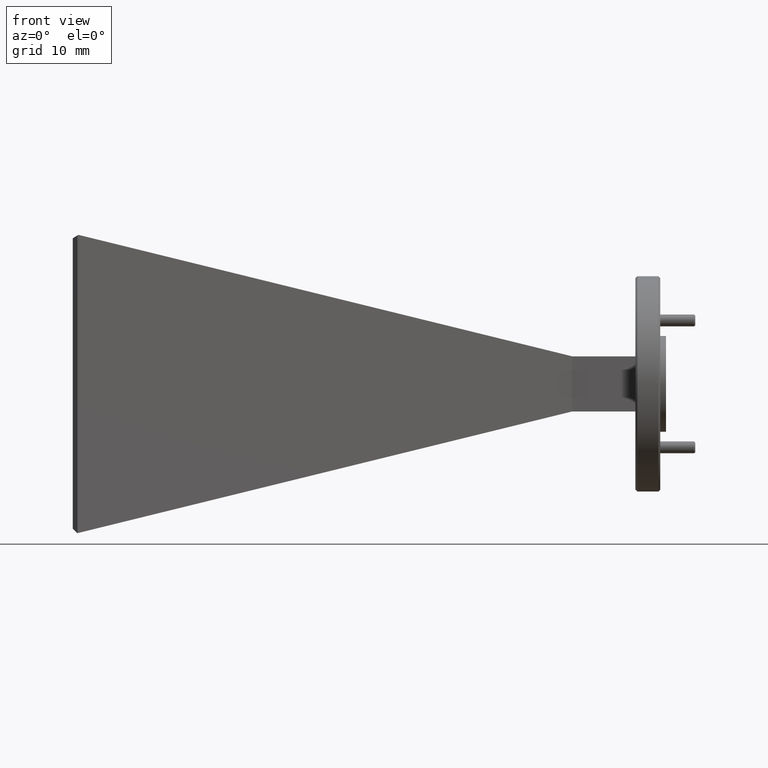
[diagram: clean part render]
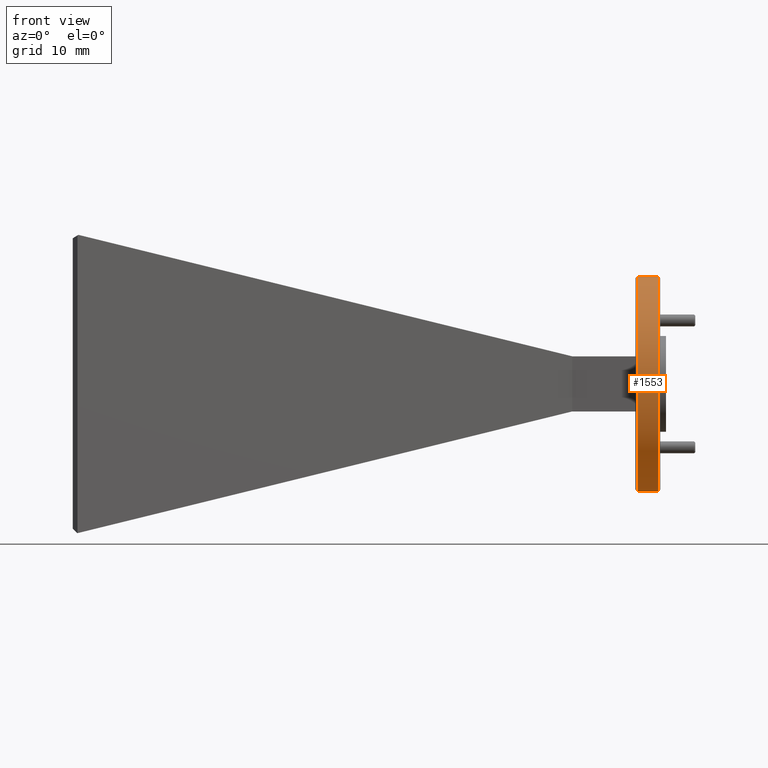
[diagram: same view with one face highlighted and labeled with its STEP entity id]
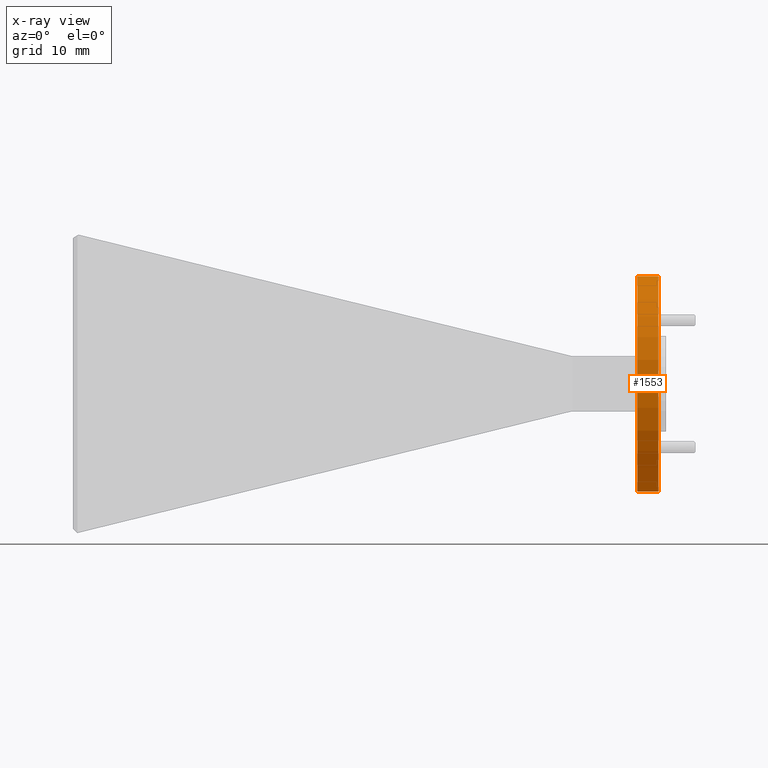
[diagram: x-ray of the same camera — body ghosted, the highlighted face saturated]
A machine part, front view. The second image highlights one B-rep face of the part: STEP entity #1553.
The next image is the same camera in x-ray: the body ghosted, the highlighted face saturated — about 0% of this face is hidden behind the body in this view.
In plain terms, the highlighted cylindrical surface (partial cylindrical patch) has radius 14.2875 mm, axis along (-1, -0, -0).
Its self-contained STEP definition (entity closure, byte-faithful):
#42 = EDGE_CURVE ( 'NONE', #55, #2305, #581, .T. ) ;
#49 = ORIENTED_EDGE ( 'NONE', *, *, #846, .T. ) ;
#55 = VERTEX_POINT ( 'NONE', #831 ) ;
#91 = AXIS2_PLACEMENT_3D ( 'NONE', #1757, #2317, #1202 ) ;
#120 = CARTESIAN_POINT ( 'NONE',  ( 2.503564782623160800, 1.586671098379451600, 1.930666721494955300 ) ) ;
#253 = CARTESIAN_POINT ( 'NONE',  ( 2.503564782623160800, 1.586671098379451600, 2.493166721494955300 ) ) ;
#316 = VERTEX_POINT ( 'NONE', #1573 ) ;
#372 = ORIENTED_EDGE ( 'NONE', *, *, #1535, .F. ) ;
#439 = CIRCLE ( 'NONE', #1661, 0.5625000000000003300 ) ;
#477 = CARTESIAN_POINT ( 'NONE',  ( 2.503564782623160800, 1.586671098379451600, 3.055666721494955300 ) ) ;
#581 = LINE ( 'NONE', #477, #2062 ) ;
#624 = DIRECTION ( 'NONE',  ( 0.0000000000000000000, 0.0000000000000000000, 1.000000000000000000 ) ) ;
#635 = LINE ( 'NONE', #120, #1036 ) ;
#756 = CIRCLE ( 'NONE', #91, 0.5624999999999997800 ) ;
#831 = CARTESIAN_POINT ( 'NONE',  ( 2.493564782623162400, 1.586671098379451600, 3.055666721494955300 ) ) ;
#846 = EDGE_CURVE ( 'NONE', #1198, #55, #756, .T. ) ;
#910 = EDGE_CURVE ( 'NONE', #1198, #316, #635, .T. ) ;
#1036 = VECTOR ( 'NONE', #1190, 39.37007874015748100 ) ;
#1069 = FACE_OUTER_BOUND ( 'NONE', #1943, .T. ) ;
#1151 = CARTESIAN_POINT ( 'NONE',  ( 2.383564782623162500, 1.586671098379451600, 3.055666721494955800 ) ) ;
#1190 = DIRECTION ( 'NONE',  ( -1.000000000000000000, -0.0000000000000000000, -0.0000000000000000000 ) ) ;
#1198 = VERTEX_POINT ( 'NONE', #1637 ) ;
#1202 = DIRECTION ( 'NONE',  ( 0.0000000000000000000, 0.0000000000000000000, 1.000000000000000000 ) ) ;
#1335 = CARTESIAN_POINT ( 'NONE',  ( 2.383564782623162500, 1.586671098379451600, 2.493166721494955300 ) ) ;
#1346 = DIRECTION ( 'NONE',  ( -1.000000000000000000, -0.0000000000000000000, -0.0000000000000000000 ) ) ;
#1356 = DIRECTION ( 'NONE',  ( 0.0000000000000000000, 0.0000000000000000000, -1.000000000000000000 ) ) ;
#1475 = ORIENTED_EDGE ( 'NONE', *, *, #42, .T. ) ;
#1535 = EDGE_CURVE ( 'NONE', #316, #2305, #439, .T. ) ;
#1542 = CYLINDRICAL_SURFACE ( 'NONE', #1696, 0.5624999999999997800 ) ;
#1553 = ADVANCED_FACE ( 'NONE', ( #1069 ), #1542, .T. ) ;
#1573 = CARTESIAN_POINT ( 'NONE',  ( 2.383564782623162500, 1.586671098379451600, 1.930666721494955100 ) ) ;
#1637 = CARTESIAN_POINT ( 'NONE',  ( 2.493564782623162400, 1.586671098379451600, 1.930666721494955300 ) ) ;
#1661 = AXIS2_PLACEMENT_3D ( 'NONE', #1335, #1346, #1356 ) ;
#1696 = AXIS2_PLACEMENT_3D ( 'NONE', #253, #1734, #624 ) ;
#1734 = DIRECTION ( 'NONE',  ( -1.000000000000000000, -0.0000000000000000000, -0.0000000000000000000 ) ) ;
#1757 = CARTESIAN_POINT ( 'NONE',  ( 2.493564782623162400, 1.586671098379451600, 2.493166721494955300 ) ) ;
#1931 = DIRECTION ( 'NONE',  ( -1.000000000000000000, -0.0000000000000000000, -0.0000000000000000000 ) ) ;
#1943 = EDGE_LOOP ( 'NONE', ( #1996, #49, #1475, #372 ) ) ;
#1996 = ORIENTED_EDGE ( 'NONE', *, *, #910, .F. ) ;
#2062 = VECTOR ( 'NONE', #1931, 39.37007874015748100 ) ;
#2305 = VERTEX_POINT ( 'NONE', #1151 ) ;
#2317 = DIRECTION ( 'NONE',  ( -1.000000000000000000, -0.0000000000000000000, -0.0000000000000000000 ) ) ;